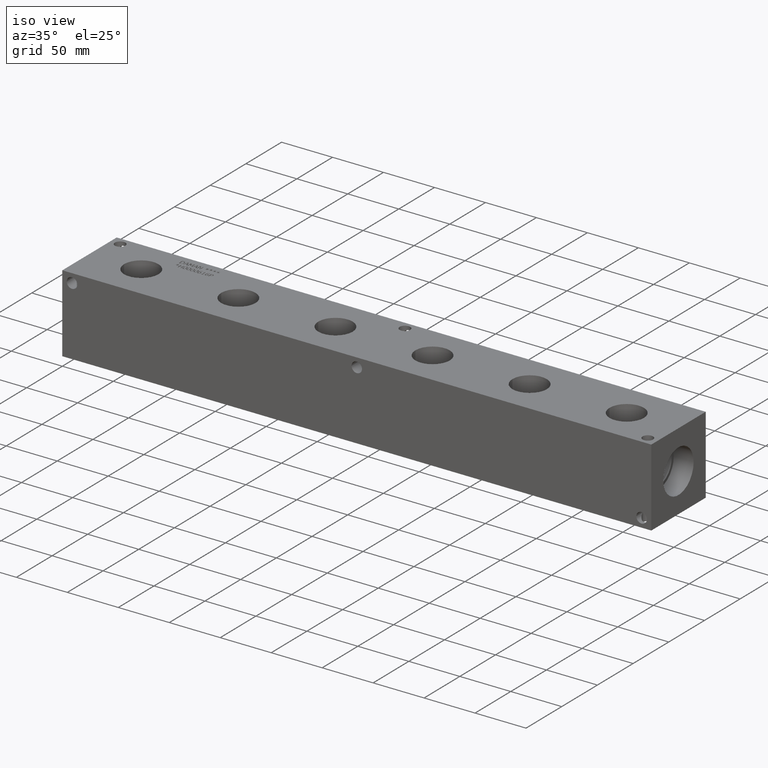
[diagram: clean part render]
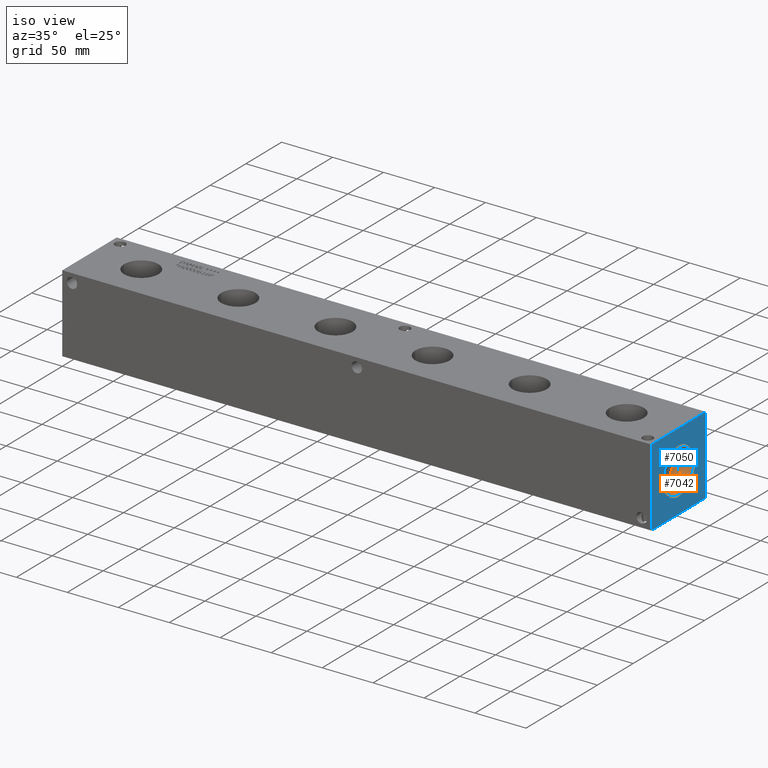
[diagram: same view with the hole feature highlighted: cylindrical wall and planar end face, labeled with their STEP entity ids]
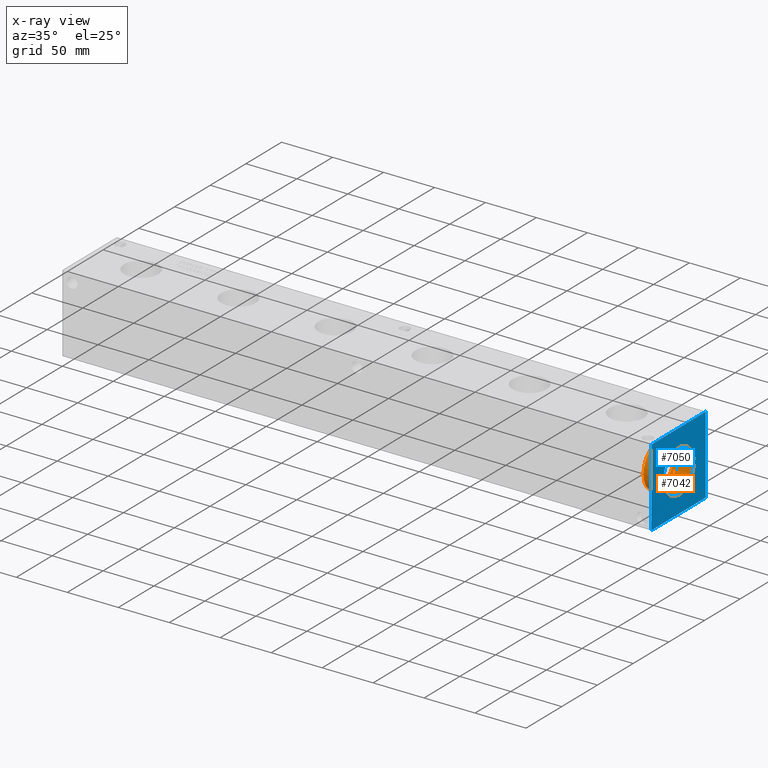
[diagram: x-ray of the same camera — body ghosted, the hole faces saturated]
A machine part, iso view. The highlighted faces form one hole feature of diameter 42.4688 mm: the cylindrical wall (entity #7042, orange) and its adjacent planar end face (entity #7050, blue) — they share a circular edge in the B-rep.
The next image is the same camera in x-ray (body ghosted, the hole faces saturated) — the bore reads through the body.
Wall:
#58=CYLINDRICAL_SURFACE('',#7387,21.2344);
#124=CIRCLE('',#7384,21.2344);
#125=CIRCLE('',#7385,21.2344);
#127=CIRCLE('',#7388,21.2344);
#128=CIRCLE('',#7389,21.2344);
#756=FACE_OUTER_BOUND('',#1158,.T.);
#1158=EDGE_LOOP('',(#6228,#6229,#6230,#6231,#6232,#6233));
#1845=LINE('',#12040,#2521);
#2521=VECTOR('',#8717,21.2344);
#3375=VERTEX_POINT('',#12029);
#3376=VERTEX_POINT('',#12030);
#3378=VERTEX_POINT('',#12036);
#3379=VERTEX_POINT('',#12037);
#4335=EDGE_CURVE('',#3375,#3376,#124,.T.);
#4336=EDGE_CURVE('',#3376,#3375,#125,.T.);
#4338=EDGE_CURVE('',#3378,#3379,#127,.T.);
#4339=EDGE_CURVE('',#3379,#3378,#128,.T.);
#4340=EDGE_CURVE('',#3379,#3376,#1845,.T.);
#6228=ORIENTED_EDGE('',*,*,#4338,.F.);
#6229=ORIENTED_EDGE('',*,*,#4339,.F.);
#6230=ORIENTED_EDGE('',*,*,#4340,.T.);
#6231=ORIENTED_EDGE('',*,*,#4335,.F.);
#6232=ORIENTED_EDGE('',*,*,#4336,.F.);
#6233=ORIENTED_EDGE('',*,*,#4340,.F.);
#7042=ADVANCED_FACE('',(#756),#58,.F.);
#7384=AXIS2_PLACEMENT_3D('',#12031,#8705,#8706);
#7385=AXIS2_PLACEMENT_3D('',#12032,#8707,#8708);
#7387=AXIS2_PLACEMENT_3D('',#12035,#8711,#8712);
#7388=AXIS2_PLACEMENT_3D('',#12038,#8713,#8714);
#7389=AXIS2_PLACEMENT_3D('',#12039,#8715,#8716);
#8705=DIRECTION('center_axis',(1.,0.,0.));
#8706=DIRECTION('ref_axis',(0.,1.,0.));
#8707=DIRECTION('center_axis',(1.,0.,0.));
#8708=DIRECTION('ref_axis',(0.,1.,0.));
#8711=DIRECTION('center_axis',(1.,0.,0.));
#8712=DIRECTION('ref_axis',(0.,1.,0.));
#8713=DIRECTION('center_axis',(-1.,0.,0.));
#8714=DIRECTION('ref_axis',(0.,1.,0.));
#8715=DIRECTION('center_axis',(-1.,0.,0.));
#8716=DIRECTION('ref_axis',(0.,1.,0.));
#8717=DIRECTION('',(-1.,0.,0.));
#12029=CARTESIAN_POINT('',(558.3428,59.3344,38.1));
#12030=CARTESIAN_POINT('',(558.3428,16.8656,38.1));
#12031=CARTESIAN_POINT('Origin',(558.3428,38.1,38.1));
#12032=CARTESIAN_POINT('Origin',(558.3428,38.1,38.1));
#12035=CARTESIAN_POINT('Origin',(568.0964,38.1,38.1));
#12036=CARTESIAN_POINT('',(577.85,59.3344,38.1));
#12037=CARTESIAN_POINT('',(577.85,16.8656,38.1));
#12038=CARTESIAN_POINT('Origin',(577.85,38.1,38.1));
#12039=CARTESIAN_POINT('Origin',(577.85,38.1,38.1));
#12040=CARTESIAN_POINT('',(568.0964,16.8656,38.1));
End face:
#127=CIRCLE('',#7388,21.2344);
#128=CIRCLE('',#7389,21.2344);
#186=FACE_BOUND('',#1172,.T.);
#407=PLANE('',#7404);
#764=FACE_OUTER_BOUND('',#1171,.T.);
#1171=EDGE_LOOP('',(#6270,#6271,#6272,#6273));
#1172=EDGE_LOOP('',(#6274,#6275));
#1434=LINE('',#10899,#2110);
#1854=LINE('',#12074,#2530);
#1855=LINE('',#12077,#2531);
#1856=LINE('',#12078,#2532);
#2110=VECTOR('',#7788,10.);
#2530=VECTOR('',#8754,10.);
#2531=VECTOR('',#8757,10.);
#2532=VECTOR('',#8758,10.);
#3035=VERTEX_POINT('',#10896);
#3036=VERTEX_POINT('',#10898);
#3378=VERTEX_POINT('',#12036);
#3379=VERTEX_POINT('',#12037);
#3390=VERTEX_POINT('',#12072);
#3391=VERTEX_POINT('',#12076);
#3834=EDGE_CURVE('',#3035,#3036,#1434,.T.);
#4338=EDGE_CURVE('',#3378,#3379,#127,.T.);
#4339=EDGE_CURVE('',#3379,#3378,#128,.T.);
#4356=EDGE_CURVE('',#3390,#3036,#1854,.T.);
#4357=EDGE_CURVE('',#3391,#3390,#1855,.T.);
#4358=EDGE_CURVE('',#3391,#3035,#1856,.T.);
#6270=ORIENTED_EDGE('',*,*,#4357,.T.);
#6271=ORIENTED_EDGE('',*,*,#4356,.T.);
#6272=ORIENTED_EDGE('',*,*,#3834,.F.);
#6273=ORIENTED_EDGE('',*,*,#4358,.F.);
#6274=ORIENTED_EDGE('',*,*,#4338,.T.);
#6275=ORIENTED_EDGE('',*,*,#4339,.T.);
#7050=ADVANCED_FACE('',(#764,#186),#407,.T.);
#7388=AXIS2_PLACEMENT_3D('',#12038,#8713,#8714);
#7389=AXIS2_PLACEMENT_3D('',#12039,#8715,#8716);
#7404=AXIS2_PLACEMENT_3D('',#12075,#8755,#8756);
#7788=DIRECTION('',(0.,1.,0.));
#8713=DIRECTION('center_axis',(-1.,0.,0.));
#8714=DIRECTION('ref_axis',(0.,1.,0.));
#8715=DIRECTION('center_axis',(-1.,0.,0.));
#8716=DIRECTION('ref_axis',(0.,1.,0.));
#8754=DIRECTION('',(0.,0.,1.));
#8755=DIRECTION('center_axis',(1.,0.,0.));
#8756=DIRECTION('ref_axis',(0.,1.,0.));
#8757=DIRECTION('',(0.,1.,0.));
#8758=DIRECTION('',(0.,0.,1.));
#10896=CARTESIAN_POINT('',(577.85,0.,76.2));
#10898=CARTESIAN_POINT('',(577.85,76.2,76.2));
#10899=CARTESIAN_POINT('',(577.85,0.,76.2));
#12036=CARTESIAN_POINT('',(577.85,59.3344,38.1));
#12037=CARTESIAN_POINT('',(577.85,16.8656,38.1));
#12038=CARTESIAN_POINT('Origin',(577.85,38.1,38.1));
#12039=CARTESIAN_POINT('Origin',(577.85,38.1,38.1));
#12072=CARTESIAN_POINT('',(577.85,76.2,0.));
#12074=CARTESIAN_POINT('',(577.85,76.2,0.));
#12075=CARTESIAN_POINT('Origin',(577.85,0.,0.));
#12076=CARTESIAN_POINT('',(577.85,0.,0.));
#12077=CARTESIAN_POINT('',(577.85,0.,0.));
#12078=CARTESIAN_POINT('',(577.85,0.,0.));